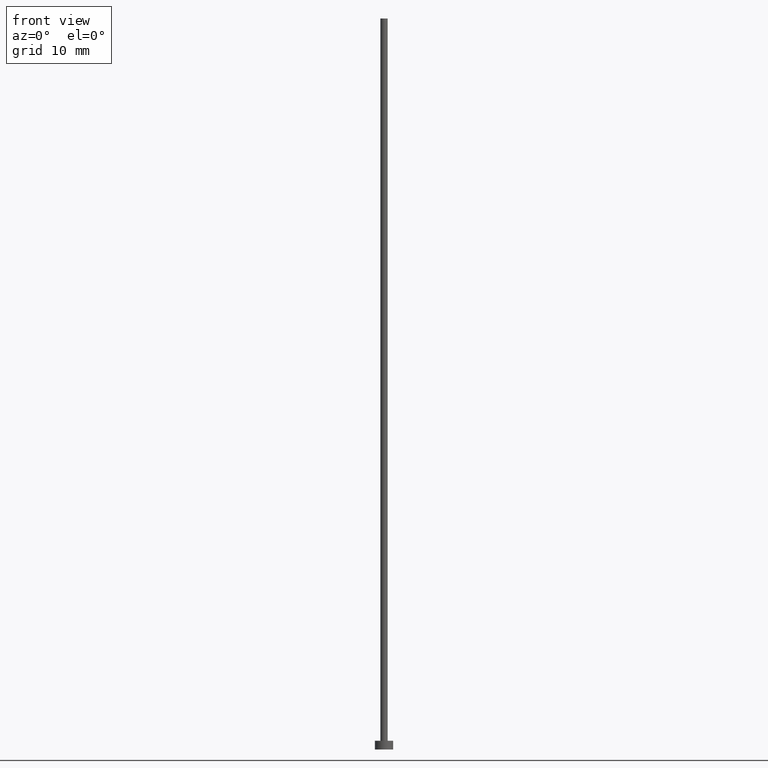
[diagram: clean part render]
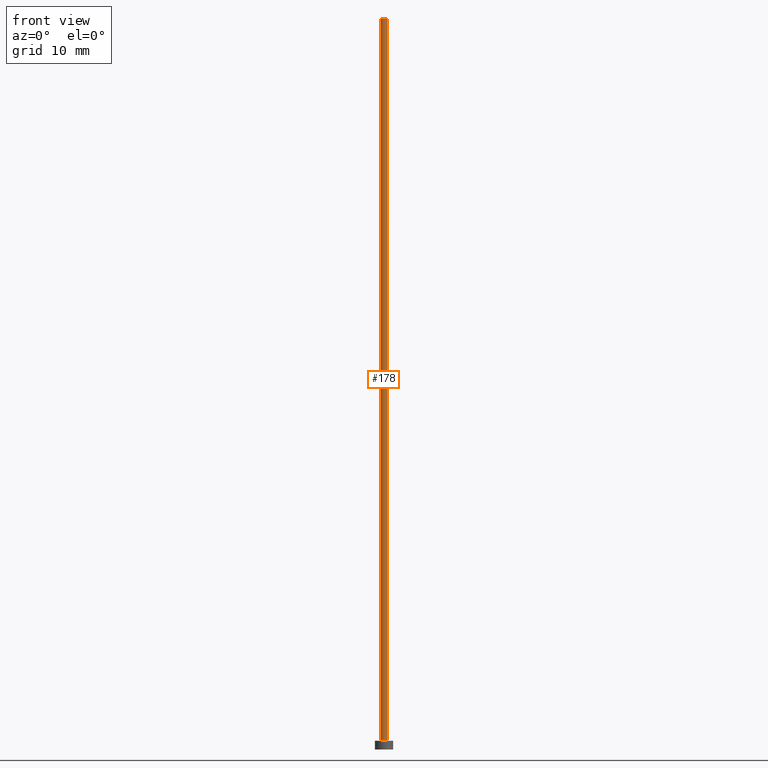
[diagram: same view with one face highlighted and labeled with its STEP entity id]
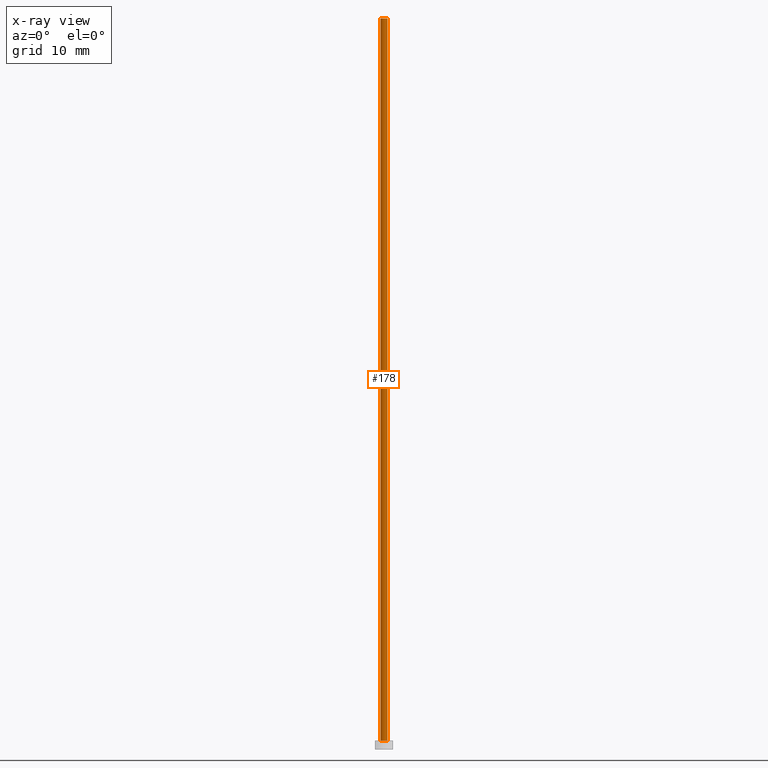
[diagram: x-ray of the same camera — body ghosted, the highlighted face saturated]
A machine part, front view. The second image highlights one B-rep face of the part: STEP entity #178.
The next image is the same camera in x-ray: the body ghosted, the highlighted face saturated — about 0% of this face is hidden behind the body in this view.
In plain terms, the highlighted cylindrical surface (edge-blend (fillet) strip) has radius 0.5 mm, axis along (-0, -0, -1).
Its self-contained STEP definition (entity closure, byte-faithful):
#4 = ORIENTED_EDGE ( 'NONE', *, *, #186, .F. ) ;
#17 = CIRCLE ( 'NONE', #42, 0.5000000000000000000 ) ;
#21 = EDGE_CURVE ( 'NONE', #29, #225, #75, .T. ) ;
#29 = VERTEX_POINT ( 'NONE', #240 ) ;
#34 = CARTESIAN_POINT ( 'NONE',  ( 0.5000000000000000000, 6.123233995736766036E-17, 1.199999999999999956 ) ) ;
#35 = DIRECTION ( 'NONE',  ( 1.000000000000000000, 0.000000000000000000, 0.000000000000000000 ) ) ;
#36 = VECTOR ( 'NONE', #252, 1000.000000000000000 ) ;
#42 = AXIS2_PLACEMENT_3D ( 'NONE', #113, #193, #35 ) ;
#48 = AXIS2_PLACEMENT_3D ( 'NONE', #134, #158, #80 ) ;
#51 = ORIENTED_EDGE ( 'NONE', *, *, #89, .T. ) ;
#53 = DIRECTION ( 'NONE',  ( -0.000000000000000000, -0.000000000000000000, -1.000000000000000000 ) ) ;
#72 = ORIENTED_EDGE ( 'NONE', *, *, #21, .T. ) ;
#75 = LINE ( 'NONE', #150, #251 ) ;
#80 = DIRECTION ( 'NONE',  ( -1.000000000000000000, 0.000000000000000000, 0.000000000000000000 ) ) ;
#84 = CYLINDRICAL_SURFACE ( 'NONE', #48, 0.5000000000000000000 ) ;
#89 = EDGE_CURVE ( 'NONE', #225, #190, #17, .T. ) ;
#91 = VERTEX_POINT ( 'NONE', #154 ) ;
#108 = EDGE_LOOP ( 'NONE', ( #188, #4, #72, #51 ) ) ;
#113 = CARTESIAN_POINT ( 'NONE',  ( 0.000000000000000000, 0.000000000000000000, 1.199999999999999956 ) ) ;
#134 = CARTESIAN_POINT ( 'NONE',  ( 0.000000000000000000, 0.000000000000000000, 100.0000000000000000 ) ) ;
#138 = DIRECTION ( 'NONE',  ( 0.000000000000000000, 0.000000000000000000, 1.000000000000000000 ) ) ;
#150 = CARTESIAN_POINT ( 'NONE',  ( -0.5000000000000000000, 0.000000000000000000, 100.0000000000000000 ) ) ;
#152 = FACE_OUTER_BOUND ( 'NONE', #108, .T. ) ;
#154 = CARTESIAN_POINT ( 'NONE',  ( 0.5000000000000000000, 6.123233995736766036E-17, 100.0000000000000000 ) ) ;
#158 = DIRECTION ( 'NONE',  ( -0.000000000000000000, -0.000000000000000000, -1.000000000000000000 ) ) ;
#170 = EDGE_CURVE ( 'NONE', #91, #190, #195, .T. ) ;
#174 = CARTESIAN_POINT ( 'NONE',  ( 0.5000000000000000000, 6.123233995736766036E-17, 100.0000000000000000 ) ) ;
#178 = ADVANCED_FACE ( 'NONE', ( #152 ), #84, .T. ) ;
#186 = EDGE_CURVE ( 'NONE', #29, #91, #189, .T. ) ;
#188 = ORIENTED_EDGE ( 'NONE', *, *, #170, .F. ) ;
#189 = CIRCLE ( 'NONE', #233, 0.5000000000000000000 ) ;
#190 = VERTEX_POINT ( 'NONE', #34 ) ;
#193 = DIRECTION ( 'NONE',  ( 0.000000000000000000, 0.000000000000000000, 1.000000000000000000 ) ) ;
#195 = LINE ( 'NONE', #174, #36 ) ;
#207 = DIRECTION ( 'NONE',  ( 1.000000000000000000, 0.000000000000000000, 0.000000000000000000 ) ) ;
#213 = CARTESIAN_POINT ( 'NONE',  ( -0.5000000000000000000, 0.000000000000000000, 1.199999999999999956 ) ) ;
#225 = VERTEX_POINT ( 'NONE', #213 ) ;
#233 = AXIS2_PLACEMENT_3D ( 'NONE', #234, #138, #207 ) ;
#234 = CARTESIAN_POINT ( 'NONE',  ( 0.000000000000000000, 0.000000000000000000, 100.0000000000000000 ) ) ;
#240 = CARTESIAN_POINT ( 'NONE',  ( -0.5000000000000000000, 0.000000000000000000, 100.0000000000000000 ) ) ;
#251 = VECTOR ( 'NONE', #53, 1000.000000000000000 ) ;
#252 = DIRECTION ( 'NONE',  ( -0.000000000000000000, -0.000000000000000000, -1.000000000000000000 ) ) ;